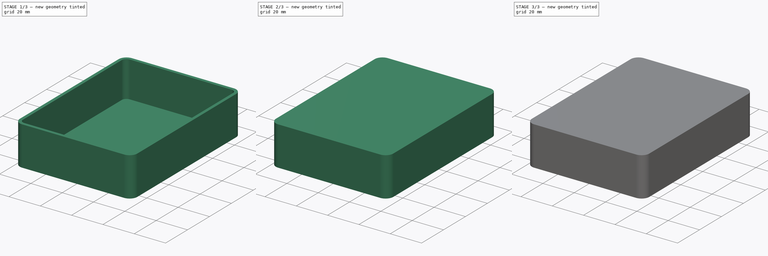
[diagram: build sequence overview — one tinted view per stage of 3, left to right]
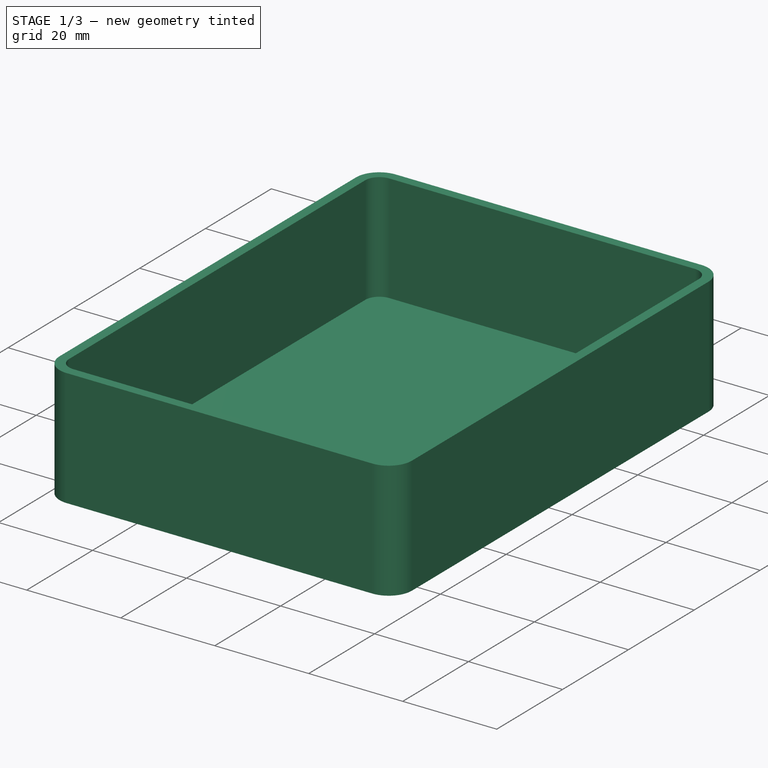
[diagram: stage 1 of 3 — iso view after this stage's code; geometry added in this stage tinted green]
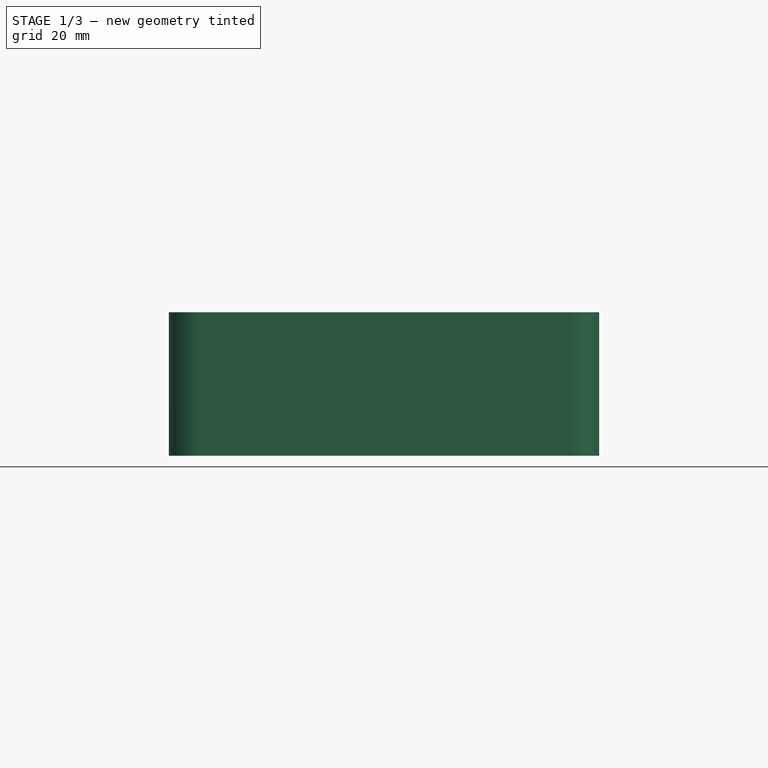
[diagram: stage 1 of 3 — front view after this stage's code; geometry added in this stage tinted green]
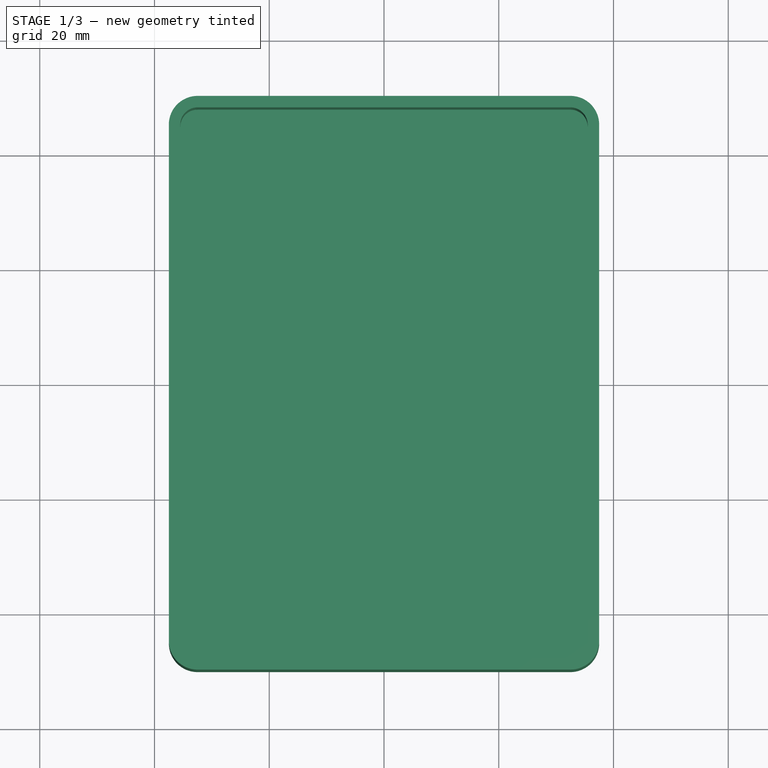
[diagram: stage 1 of 3 — top view after this stage's code; geometry added in this stage tinted green]
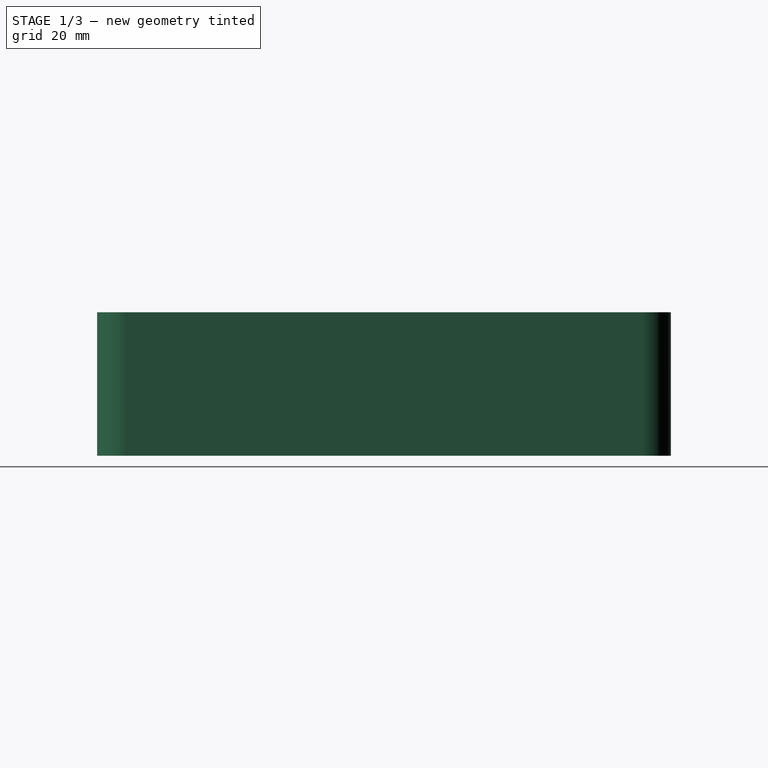
[diagram: stage 1 of 3 — right view after this stage's code; geometry added in this stage tinted green]
FCSTD DOCUMENT  (FreeCAD 1.0R39319 (Git))
Label: Box_Asemmby
License: All rights reserved
LicenseURL: https://en.wikipedia.org/wiki/All_rights_reserved
objects: Sketcher::SketchObject×5, PartDesign::Body×3, PartDesign::Pad×3, PartDesign::Thickness×2, PartDesign::SubShapeBinder×1, PartDesign::Pocket×1
note: 32 computed .brp shape members not serialized (recipe doc carries the construction recipe); baked Part::Feature solids carry a one-line shape summary decoded from their .brp

FEATURE [PartDesign::Body] Body
  AllowCompound = false
  Origin = -> Origin
FEATURE [Sketcher::SketchObject] Sketch
  ArcFitTolerance = 1e-06
  AttachmentSupport = -> [XY_Plane001]
  FullyConstrained = true
  MakeInternals = false
  MapMode = 5
  sketch-geometry (13):
    g0: LineSegment StartX=37.5 StartY=-45 StartZ=0 EndX=37.5 EndY=45 EndZ=0
    g1: LineSegment StartX=32.5 StartY=50 StartZ=0 EndX=-32.5 EndY=50 EndZ=0
    g2: LineSegment StartX=-37.5 StartY=45 StartZ=0 EndX=-37.5 EndY=-45 EndZ=0
    g3: LineSegment StartX=-32.5 StartY=-50 StartZ=0 EndX=32.5 EndY=-50 EndZ=0
    g4: GeomPoint [constr] X=0 Y=0 Z=0
    g5: ArcOfCircle CenterX=-32.5 CenterY=45 CenterZ=0 NormalX=0 NormalY=0 NormalZ=1 AngleXU=0 Radius=5 StartAngle=1.5708 EndAngle=3.14159
    g6: GeomPoint [constr] X=-37.5 Y=50 Z=0
    g7: ArcOfCircle CenterX=32.5 CenterY=45 CenterZ=0 NormalX=0 NormalY=0 NormalZ=1 AngleXU=0 Radius=5 StartAngle=7e-16 EndAngle=1.5708
    g8: GeomPoint [constr] X=37.5 Y=50 Z=0
    g9: ArcOfCircle CenterX=32.5 CenterY=-45 CenterZ=0 NormalX=0 NormalY=0 NormalZ=1 AngleXU=0 Radius=5 StartAngle=4.71239 EndAngle=6.28319
    g10: GeomPoint [constr] X=37.5 Y=-50 Z=0
    g11: ArcOfCircle CenterX=-32.5 CenterY=-45 CenterZ=0 NormalX=0 NormalY=0 NormalZ=1 AngleXU=0 Radius=5 StartAngle=3.14159 EndAngle=4.71239
    g12: GeomPoint [constr] X=-37.5 Y=-50 Z=0
  constraints (28):
    c: Vertical(g0)
    c: Vertical(g2)
    c: Horizontal(g1)
    c: Horizontal(g3)
    c: Symmetric(g6,g10,g4)
    c: Coincident(g4,g-1)
    c: PointOnObject(g6,g1)
    c: PointOnObject(g6,g2)
    c: Tangent(g1,g5) = -1.5708
    c: Tangent(g2,g5) = -1.5708
    c: PointOnObject(g8,g0)
    c: PointOnObject(g8,g1)
    c: Tangent(g0,g7) = -1.5708
    c: Tangent(g1,g7) = -1.5708
    c: PointOnObject(g10,g0)
    c: PointOnObject(g10,g3)
    c: Tangent(g0,g9) = -1.5708
    c: Tangent(g3,g9) = -1.5708
    c: PointOnObject(g12,g2)
    c: PointOnObject(g12,g3)
    c: Tangent(g2,g11) = -1.5708
    c: Tangent(g3,g11) = -1.5708
    c: Equal(g5,g11)
    c: Equal(g5,g7)
    c: Equal(g5,g9)
    c: Radius(g5) = 5
    c: Distance(g3,g1) = 100
    c: Distance(g0,g2) = 75
FEATURE [PartDesign::Pad] Pad
  Direction = (0,0,1)
  Length = 25
  Length2 = 10
  Profile = -> Sketch
  ReferenceAxis = -> Sketch [N_Axis]
  Refine = true
  Suppressed = false
  Type = 0
FEATURE [Sketcher::SketchObject] Sketch001
  ArcFitTolerance = 1e-06
  AttachmentSupport = -> [Pad]
  FullyConstrained = true
  MakeInternals = false
  MapMode = 5
  Placement = pos=(0,0,25) rot=(0,0,1;0rad)
FEATURE [PartDesign::Thickness] Thickness
  Base = -> Pad [Face10]
  BaseFeature = -> Pad
  Intersection = false
  Join = 0
  Mode = 0
  Refine = true
  Reversed = true
  SupportTransform = false
  Suppressed = false
  Value = 2
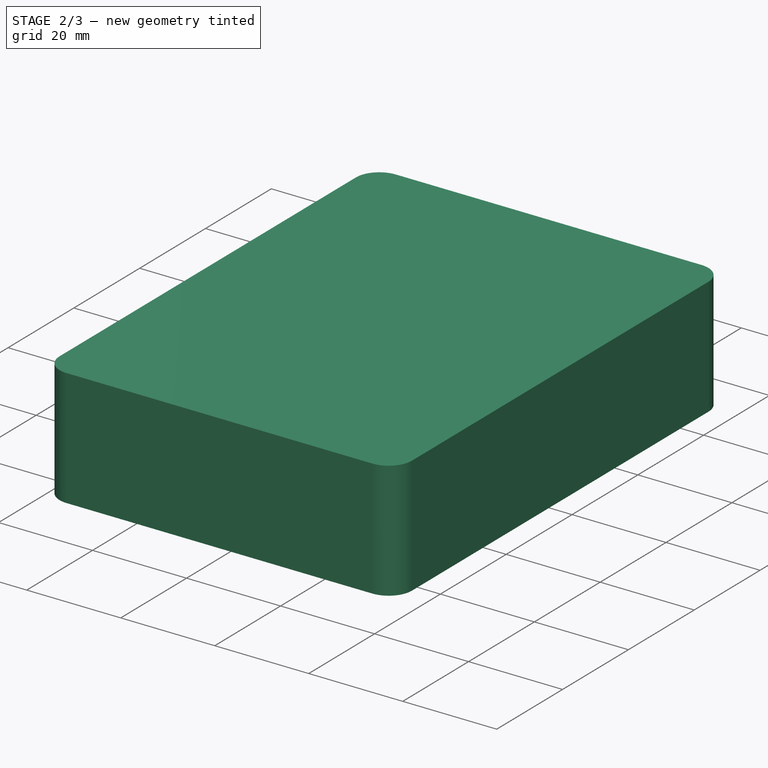
[diagram: stage 2 of 3 — iso view after this stage's code; geometry added in this stage tinted green]
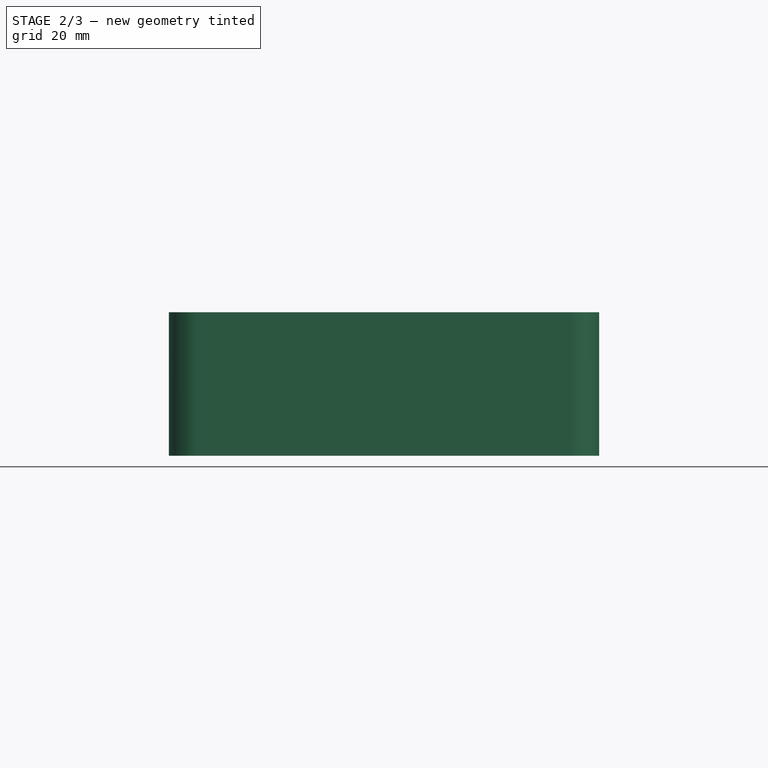
[diagram: stage 2 of 3 — front view after this stage's code; geometry added in this stage tinted green]
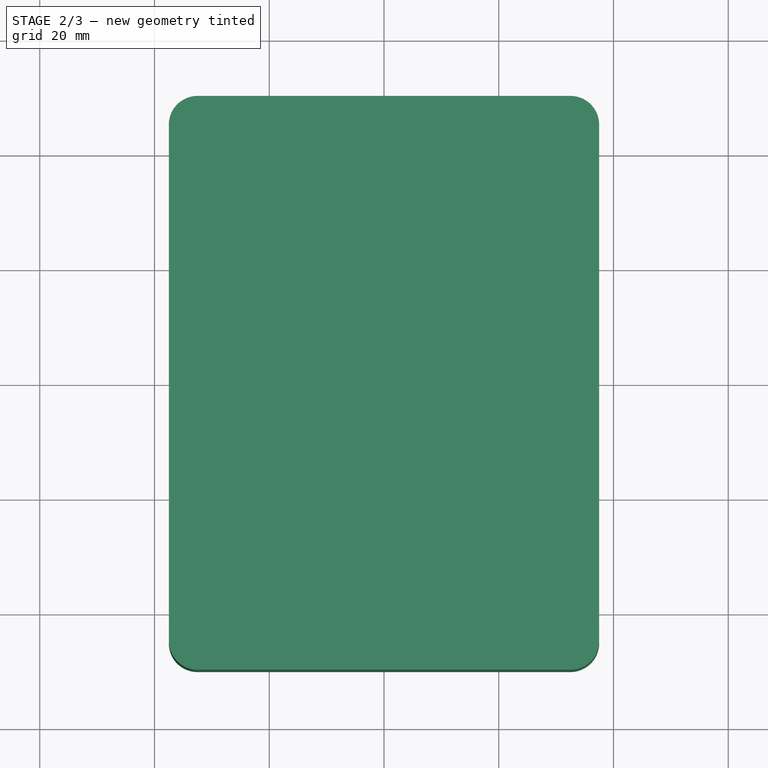
[diagram: stage 2 of 3 — top view after this stage's code; geometry added in this stage tinted green]
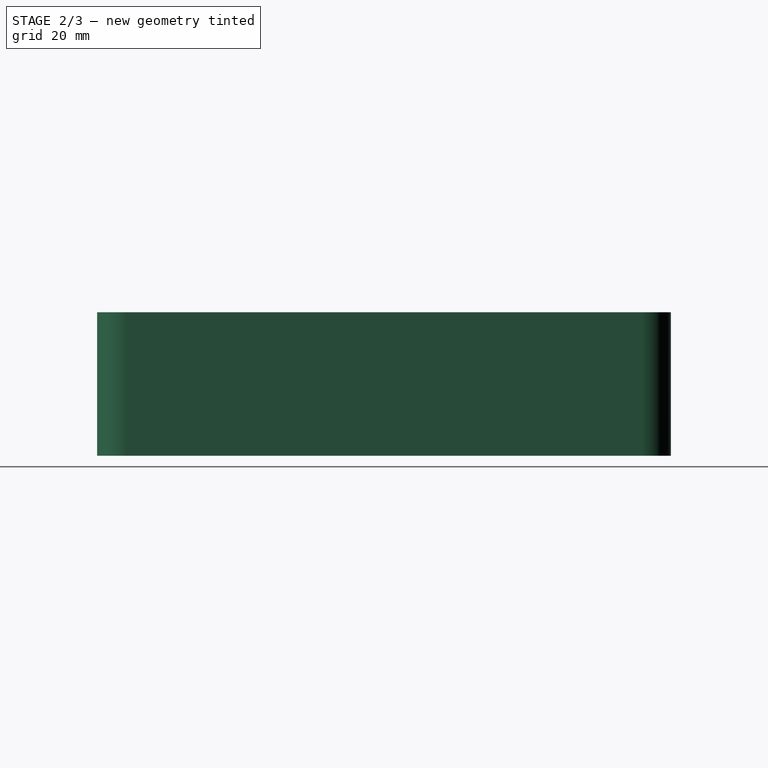
[diagram: stage 2 of 3 — right view after this stage's code; geometry added in this stage tinted green]
FEATURE [Sketcher::SketchObject] Sketch002
  ArcFitTolerance = 1e-06
  AttachmentSupport = -> [Thickness]
  ExternalGeometry = -> [Thickness]
  FullyConstrained = true
  MakeInternals = false
  MapMode = 5
  Placement = pos=(0,0,25) rot=(0,0,1;0rad)
  sketch-geometry (20):
    g0: LineSegment StartX=36.5 StartY=-45 StartZ=0 EndX=36.5 EndY=45 EndZ=0
    g1: LineSegment StartX=32.5 StartY=49 StartZ=0 EndX=-32.5 EndY=49 EndZ=0
    g2: LineSegment StartX=-36.5 StartY=45 StartZ=0 EndX=-36.5 EndY=-45 EndZ=0
    g3: LineSegment StartX=-32.5 StartY=-49 StartZ=0 EndX=32.5 EndY=-49 EndZ=0
    g4: ArcOfCircle CenterX=32.5 CenterY=-45 CenterZ=0 NormalX=0 NormalY=0 NormalZ=1 AngleXU=0 Radius=4 StartAngle=4.71239 EndAngle=6.28319
    g5: ArcOfCircle CenterX=32.5 CenterY=45 CenterZ=0 NormalX=0 NormalY=0 NormalZ=1 AngleXU=0 Radius=4 StartAngle=1.752e-12 EndAngle=1.5708
    g6: ArcOfCircle CenterX=-32.5 CenterY=45 CenterZ=0 NormalX=0 NormalY=0 NormalZ=1 AngleXU=0 Radius=4 StartAngle=1.5708 EndAngle=3.14159
    g7: ArcOfCircle CenterX=-32.5 CenterY=-45 CenterZ=0 NormalX=0 NormalY=0 NormalZ=1 AngleXU=0 Radius=4 StartAngle=3.14159 EndAngle=4.71239
    g8: GeomPoint [constr] X=36.5 Y=-49 Z=0
    g9: GeomPoint [constr] X=-36.5 Y=49 Z=0
    g10: LineSegment StartX=35.5 StartY=-45 StartZ=0 EndX=35.5 EndY=45 EndZ=0
    g11: LineSegment StartX=32.5 StartY=48 StartZ=0 EndX=-32.5 EndY=48 EndZ=0
    g12: LineSegment StartX=-35.5 StartY=45 StartZ=0 EndX=-35.5 EndY=-45 EndZ=0
    g13: LineSegment StartX=-32.5 StartY=-48 StartZ=0 EndX=32.5 EndY=-48 EndZ=0
    g14: ArcOfCircle CenterX=32.5 CenterY=-45 CenterZ=0 NormalX=0 NormalY=0 NormalZ=1 AngleXU=0 Radius=3 StartAngle=4.71239 EndAngle=6.28319
    g15: ArcOfCircle CenterX=32.5 CenterY=45 CenterZ=0 NormalX=0 NormalY=0 NormalZ=1 AngleXU=0 Radius=3 StartAngle=1.9297e-12 EndAngle=1.5708
    g16: ArcOfCircle CenterX=-32.5 CenterY=45 CenterZ=0 NormalX=0 NormalY=0 NormalZ=1 AngleXU=0 Radius=3 StartAngle=1.5708 EndAngle=3.14159
    g17: ArcOfCircle CenterX=-32.5 CenterY=-45 CenterZ=0 NormalX=0 NormalY=0 NormalZ=1 AngleXU=0 Radius=3 StartAngle=3.14159 EndAngle=4.71239
    g18: GeomPoint [constr] X=35.5 Y=-48 Z=0
    g19: GeomPoint [constr] X=-35.5 Y=48 Z=0
  constraints (46):
    c: Tangent(g0,g4) = -1.5708
    c: Tangent(g0,g5) = -1.5708
    c: Tangent(g1,g5) = -1.5708
    c: Tangent(g1,g6) = -1.5708
    c: Tangent(g2,g6) = -1.5708
    c: Tangent(g2,g7) = -1.5708
    c: Tangent(g3,g7) = -1.5708
    c: Tangent(g3,g4) = -1.5708
    c: Vertical(g0)
    c: Vertical(g2)
    c: Horizontal(g1)
    c: Horizontal(g3)
    c: Equal(g4,g5)
    c: Equal(g5,g6)
    c: Equal(g6,g7)
    c: PointOnObject(g8,g0)
    c: PointOnObject(g8,g3)
    c: PointOnObject(g9,g1)
    c: PointOnObject(g9,g2)
    c: Symmetric(g6,g4,g-1)
    c: Equal(g1,g-3)
    c: Equal(g-6,g2)
    c: Radius(g6) = 4
    c: Tangent(g10,g14) = -1.5708
    c: Tangent(g10,g15) = -1.5708
    c: Tangent(g11,g15) = -1.5708
    c: Tangent(g11,g16) = -1.5708
    c: Tangent(g12,g16) = -1.5708
    c: Tangent(g12,g17) = -1.5708
    c: Tangent(g13,g17) = -1.5708
    c: Tangent(g13,g14) = -1.5708
    c: Vertical(g10)
    c: Vertical(g12)
    c: Horizontal(g11)
    c: Horizontal(g13)
    c: Equal(g14,g15)
    c: Equal(g15,g16)
    c: Equal(g16,g17)
    c: PointOnObject(g18,g10)
    c: PointOnObject(g18,g13)
    c: PointOnObject(g19,g11)
    c: PointOnObject(g19,g12)
    c: Symmetric(g16,g14,g-1)
    c: Equal(g11,g-3)
    c: Equal(g12,g-6)
    c: Equal(g16,g-7)
FEATURE [PartDesign::Pad] Pad001  label="Base_Lip"
  BaseFeature = -> Thickness
  Direction = (0,0,1)
  Length = 3
  Length2 = 10
  Profile = -> Sketch002
  ReferenceAxis = -> Sketch002 [N_Axis]
  Refine = true
  Suppressed = false
  Type = 0
FEATURE [PartDesign::Body] Body001  label="Base"
  AllowCompound = false
  Group = -> [Sketch,Pad,Sketch001,Thickness,Sketch002,Pad001]
  Origin = -> Origin001
  Tip = -> Pad001
FEATURE [PartDesign::SubShapeBinder] Binder
  BindCopyOnChange = 0
  BindMode = 0
  ClaimChildren = false
  Context = -> Body002 [Binder.]
  Fuse = false
  MakeFace = true
  OffsetFill = false
  OffsetIntersection = false
  OffsetJoinType = 0
  OffsetOpenResult = false
  PartialLoad = false
  Refine = true
  Relative = true
  Support = -> [Body001]
  _Version = 2
FEATURE [Sketcher::SketchObject] Sketch003
  ArcFitTolerance = 1e-06
  AttachmentOffset = pos=(0,0,25.2) rot=(0,0,1;0rad)
  AttachmentSupport = -> [XY_Plane002]
  ExternalGeometry = -> [Binder]
  FullyConstrained = true
  MakeInternals = false
  MapMode = 5
  Placement = pos=(0,0,25.2) rot=(0,0,1;0rad)
  sketch-geometry (10):
    g0: LineSegment StartX=37.5 StartY=-45 StartZ=0 EndX=37.5 EndY=45 EndZ=0
    g1: LineSegment StartX=32.5 StartY=50 StartZ=0 EndX=-32.5 EndY=50 EndZ=0
    g2: LineSegment StartX=-37.5 StartY=45 StartZ=0 EndX=-37.5 EndY=-45 EndZ=0
    g3: LineSegment StartX=-32.5 StartY=-50 StartZ=0 EndX=32.5 EndY=-50 EndZ=0
    g4: ArcOfCircle CenterX=32.5 CenterY=-45 CenterZ=0 NormalX=0 NormalY=0 NormalZ=1 AngleXU=0 Radius=5 StartAngle=4.71239 EndAngle=6.28319
    g5: ArcOfCircle CenterX=32.5 CenterY=45 CenterZ=0 NormalX=0 NormalY=0 NormalZ=1 AngleXU=0 Radius=5 StartAngle=4.5e-15 EndAngle=1.5708
    g6: ArcOfCircle CenterX=-32.5 CenterY=45 CenterZ=0 NormalX=0 NormalY=0 NormalZ=1 AngleXU=0 Radius=5 StartAngle=1.5708 EndAngle=3.14159
    g7: ArcOfCircle CenterX=-32.5 CenterY=-45 CenterZ=0 NormalX=0 NormalY=0 NormalZ=1 AngleXU=0 Radius=5 StartAngle=3.14159 EndAngle=4.71239
    g8: GeomPoint [constr] X=37.5 Y=-50 Z=0
    g9: GeomPoint [constr] X=-37.5 Y=50 Z=0
  constraints (23):
    c: Tangent(g0,g4) = -1.5708
    c: Tangent(g0,g5) = -1.5708
    c: Tangent(g1,g5) = -1.5708
    c: Tangent(g1,g6) = -1.5708
    c: Tangent(g2,g6) = -1.5708
    c: Tangent(g2,g7) = -1.5708
    c: Tangent(g3,g7) = -1.5708
    c: Tangent(g3,g4) = -1.5708
    c: Vertical(g0)
    c: Vertical(g2)
    c: Horizontal(g1)
    c: Horizontal(g3)
    c: Equal(g4,g5)
    c: Equal(g5,g6)
    c: Equal(g6,g7)
    c: PointOnObject(g8,g0)
    c: PointOnObject(g8,g3)
    c: PointOnObject(g9,g1)
    c: PointOnObject(g9,g2)
    c: Symmetric(g6,g4,g-1)
    c: Equal(g1,g-3)
    c: Equal(g2,g-5)
    c: Equal(g6,g-4)
FEATURE [PartDesign::Pad] Pad002
  Direction = (0,0,1)
  Length = 25
  Length2 = 10
  Profile = -> Sketch003
  ReferenceAxis = -> Sketch003 [N_Axis]
  Refine = true
  Suppressed = false
  Type = 0
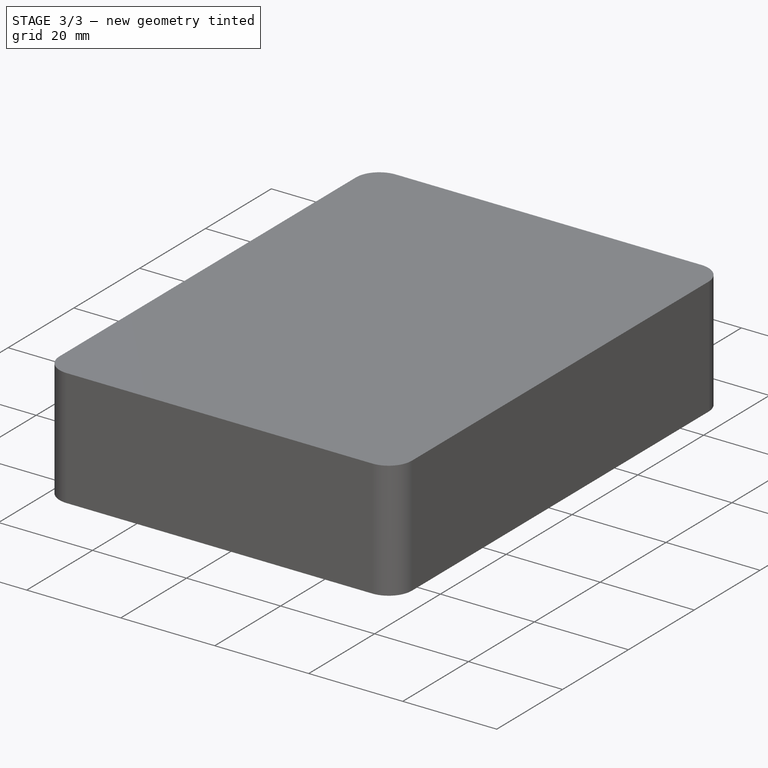
[diagram: stage 3 of 3 — iso view after this stage's code; geometry added in this stage tinted green]
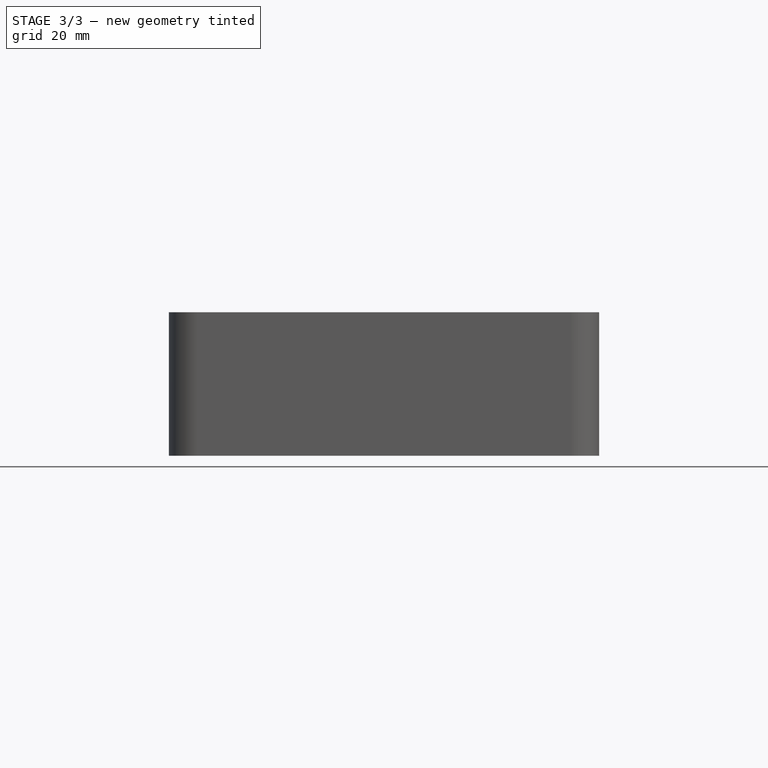
[diagram: stage 3 of 3 — front view after this stage's code; geometry added in this stage tinted green]
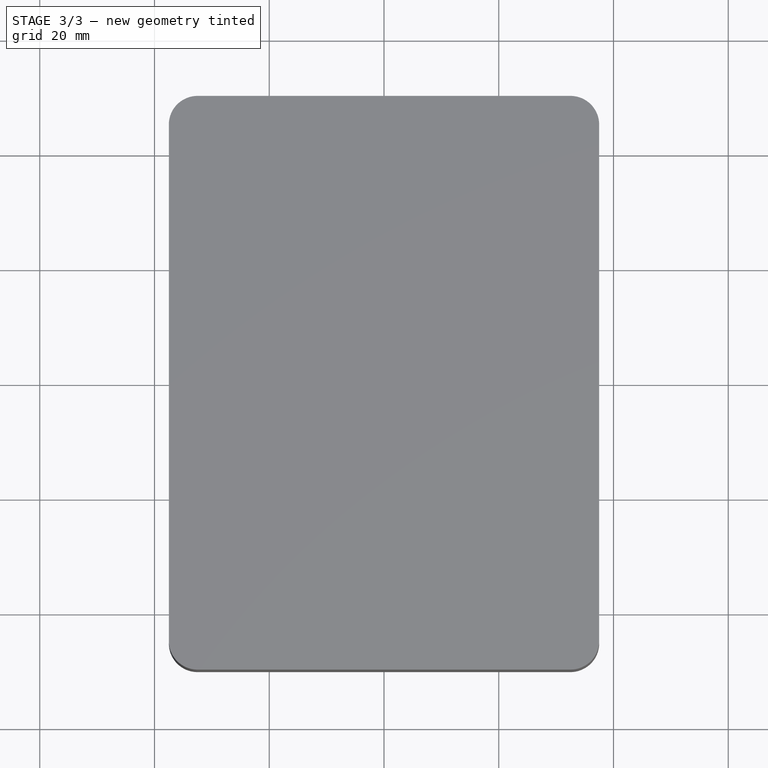
[diagram: stage 3 of 3 — top view after this stage's code; geometry added in this stage tinted green]
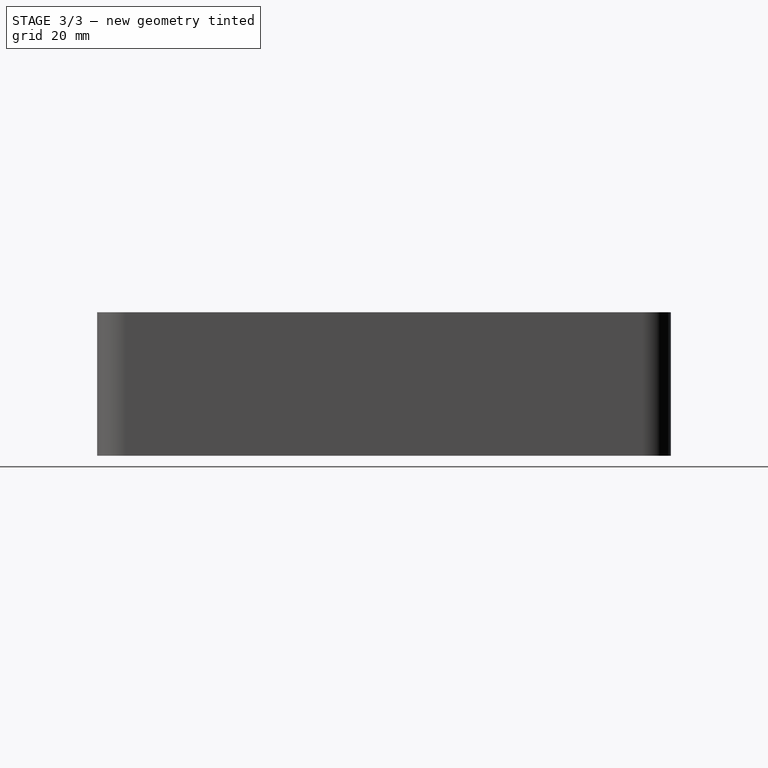
[diagram: stage 3 of 3 — right view after this stage's code; geometry added in this stage tinted green]
FEATURE [PartDesign::Thickness] Thickness001
  Base = -> Pad002 [Face9]
  BaseFeature = -> Pad002
  Intersection = false
  Join = 0
  Mode = 0
  Refine = true
  Reversed = true
  SupportTransform = false
  Suppressed = false
  Value = 2
FEATURE [Sketcher::SketchObject] Sketch005
  ArcFitTolerance = 1e-06
  AttachmentSupport = -> [Thickness001]
  ExternalGeometry = -> [Thickness001]
  FullyConstrained = true
  MakeInternals = false
  MapMode = 5
  Placement = pos=(0,0,25.2) rot=(1,0,0;3.14159rad)
  sketch-geometry (20):
    g0: LineSegment StartX=-36.7 StartY=45 StartZ=0 EndX=-36.7 EndY=-45 EndZ=0
    g1: LineSegment StartX=-32.5 StartY=-49.2 StartZ=0 EndX=32.5 EndY=-49.2 EndZ=0
    g2: LineSegment StartX=36.7 StartY=-45 StartZ=0 EndX=36.7 EndY=45 EndZ=0
    g3: LineSegment StartX=32.5 StartY=49.2 StartZ=0 EndX=-32.5 EndY=49.2 EndZ=0
    g4: ArcOfCircle CenterX=-32.5 CenterY=45 CenterZ=0 NormalX=0 NormalY=0 NormalZ=1 AngleXU=0 Radius=4.2 StartAngle=1.5708 EndAngle=3.14159
    g5: ArcOfCircle CenterX=-32.5 CenterY=-45 CenterZ=0 NormalX=0 NormalY=0 NormalZ=1 AngleXU=0 Radius=4.2 StartAngle=3.14159 EndAngle=4.71239
    g6: ArcOfCircle CenterX=32.5 CenterY=-45 CenterZ=0 NormalX=0 NormalY=0 NormalZ=1 AngleXU=0 Radius=4.2 StartAngle=4.71239 EndAngle=6.28319
    g7: ArcOfCircle CenterX=32.5 CenterY=45 CenterZ=0 NormalX=0 NormalY=0 NormalZ=1 AngleXU=0 Radius=4.2 StartAngle=8e-16 EndAngle=1.5708
    g8: GeomPoint [constr] X=-36.7 Y=49.2 Z=0
    g9: GeomPoint [constr] X=36.7 Y=-49.2 Z=0
    g10: LineSegment StartX=-35.5 StartY=45 StartZ=0 EndX=-35.5 EndY=-45 EndZ=0
    g11: LineSegment StartX=-32.5 StartY=-48 StartZ=0 EndX=32.5 EndY=-48 EndZ=0
    g12: LineSegment StartX=35.5 StartY=-45 StartZ=0 EndX=35.5 EndY=45 EndZ=0
    g13: LineSegment StartX=32.5 StartY=48 StartZ=0 EndX=-32.5 EndY=48 EndZ=0
    g14: ArcOfCircle CenterX=-32.5 CenterY=45 CenterZ=0 NormalX=0 NormalY=0 NormalZ=1 AngleXU=0 Radius=3 StartAngle=1.5708 EndAngle=3.14159
    g15: ArcOfCircle CenterX=-32.5 CenterY=-45 CenterZ=0 NormalX=0 NormalY=0 NormalZ=1 AngleXU=0 Radius=3 StartAngle=3.14159 EndAngle=4.71239
    g16: ArcOfCircle CenterX=32.5 CenterY=-45 CenterZ=0 NormalX=0 NormalY=0 NormalZ=1 AngleXU=0 Radius=3 StartAngle=4.71239 EndAngle=6.28319
    g17: ArcOfCircle CenterX=32.5 CenterY=45 CenterZ=0 NormalX=0 NormalY=0 NormalZ=1 AngleXU=0 Radius=3 StartAngle=-6.2e-15 EndAngle=1.5708
    g18: GeomPoint [constr] X=-35.5 Y=48 Z=0
    g19: GeomPoint [constr] X=35.5 Y=-48 Z=0
  constraints (46):
    c: Tangent(g0,g4) = -1.5708
    c: Tangent(g0,g5) = -1.5708
    c: Tangent(g1,g5) = -1.5708
    c: Tangent(g1,g6) = -1.5708
    c: Tangent(g2,g6) = -1.5708
    c: Tangent(g2,g7) = -1.5708
    c: Tangent(g3,g7) = -1.5708
    c: Tangent(g3,g4) = -1.5708
    c: Vertical(g0)
    c: Vertical(g2)
    c: Horizontal(g1)
    c: Horizontal(g3)
    c: Equal(g4,g5)
    c: Equal(g5,g6)
    c: Equal(g6,g7)
    c: PointOnObject(g8,g0)
    c: PointOnObject(g8,g3)
    c: PointOnObject(g9,g1)
    c: PointOnObject(g9,g2)
    c: Symmetric(g4,g6,g-1)
    c: Equal(g-3,g3)
    c: Equal(g0,g-5)
    c: Radius(g4) = 4.2
    c: Tangent(g10,g14) = -1.5708
    c: Tangent(g10,g15) = -1.5708
    c: Tangent(g11,g15) = -1.5708
    c: Tangent(g11,g16) = -1.5708
    c: Tangent(g12,g16) = -1.5708
    c: Tangent(g12,g17) = -1.5708
    c: Tangent(g13,g17) = -1.5708
    c: Tangent(g13,g14) = -1.5708
    c: Vertical(g10)
    c: Vertical(g12)
    c: Horizontal(g11)
    c: Horizontal(g13)
    c: Equal(g14,g15)
    c: Equal(g15,g16)
    c: Equal(g16,g17)
    c: PointOnObject(g18,g10)
    c: PointOnObject(g18,g13)
    c: PointOnObject(g19,g11)
    c: PointOnObject(g19,g12)
    c: Symmetric(g14,g16,g-1)
    c: Equal(g13,g-3)
    c: Equal(g10,g-5)
    c: Equal(g14,g-6)
FEATURE [PartDesign::Pocket] Pocket
  BaseFeature = -> Thickness001
  Direction = (0,0,1)
  Length = 3
  Length2 = 5
  Profile = -> Sketch005
  ReferenceAxis = -> Sketch005 [N_Axis]
  Refine = true
  Suppressed = false
  Type = 0
FEATURE [PartDesign::Body] Body002  label="Lid"
  AllowCompound = false
  Group = -> [Sketch003,Binder,Pad002,Thickness001,Sketch005,Pocket]
  Origin = -> Origin002
  Tip = -> Pocket
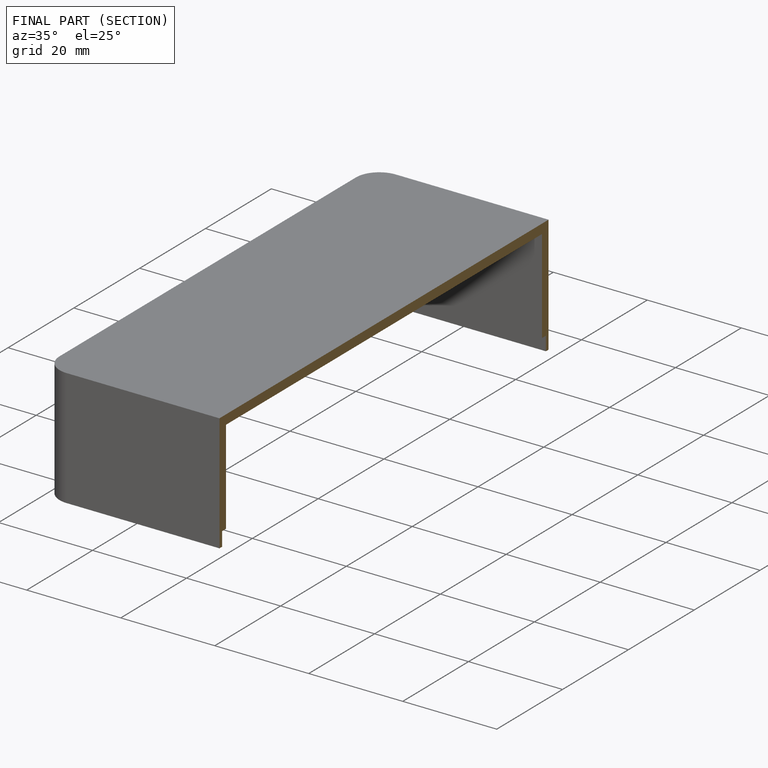
[diagram: finished part — half-section view (interior)]
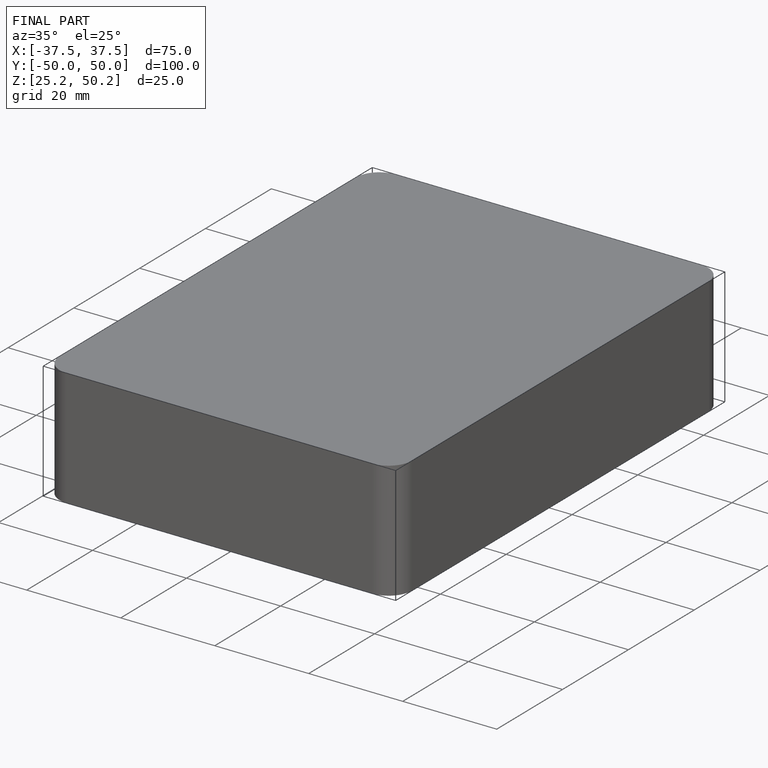
[diagram: finished part — iso view with bounding-box wireframe]
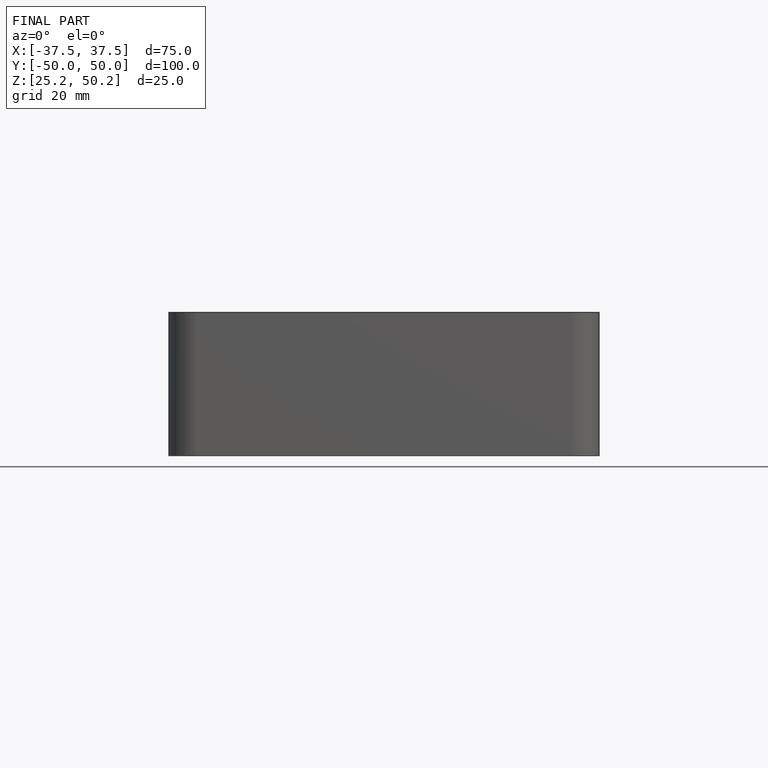
[diagram: finished part — front view with bounding-box wireframe]
